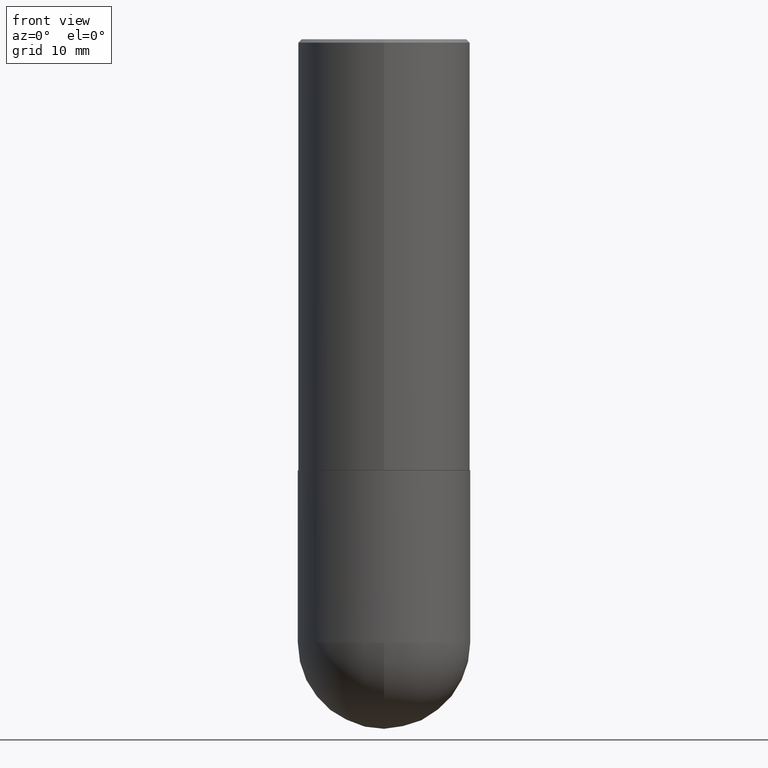
[diagram: clean part render]
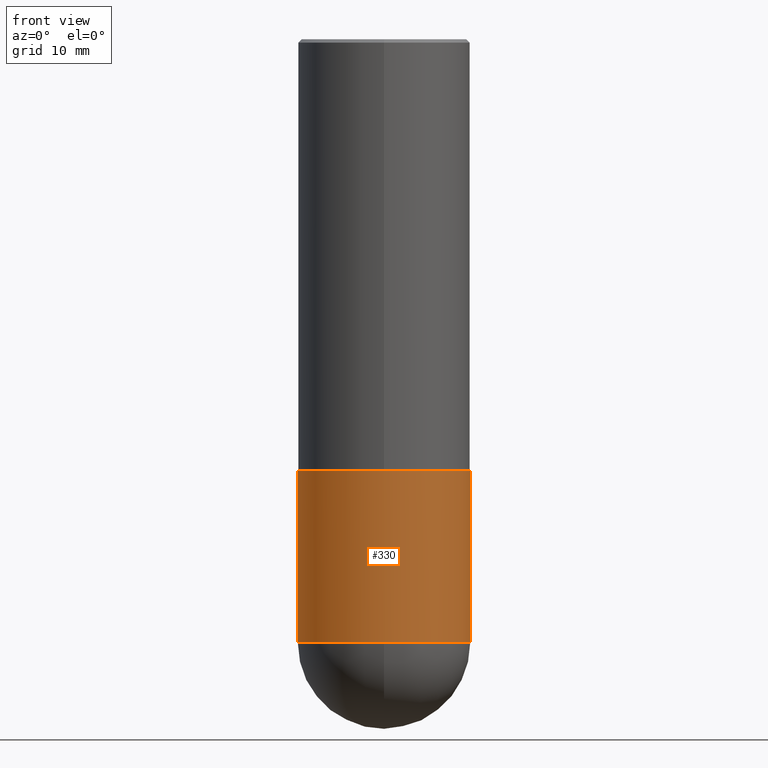
[diagram: same view with one face highlighted and labeled with its STEP entity id]
A machine part, front view. The second image highlights one B-rep face of the part: STEP entity #330.
In plain terms, the highlighted cylindrical surface (partial cylindrical patch) has radius 12.7 mm, axis along (-0, 0, 1).
Its self-contained STEP definition (entity closure, byte-faithful):
#5 = DIRECTION ( 'NONE',  ( 1.000000000000000000, -6.982962677686266711E-15, 0.000000000000000000 ) ) ;
#7 = VERTEX_POINT ( 'NONE', #109 ) ;
#11 = EDGE_LOOP ( 'NONE', ( #173, #112, #302, #232, #179 ) ) ;
#52 = AXIS2_PLACEMENT_3D ( 'NONE', #164, #64, #101 ) ;
#63 = VERTEX_POINT ( 'NONE', #140 ) ;
#64 = DIRECTION ( 'NONE',  ( -2.445468806185136597E-29, 3.491481338843145583E-15, 1.000000000000000000 ) ) ;
#69 = DIRECTION ( 'NONE',  ( 1.000000000000000000, -6.982962677686266711E-15, 0.000000000000000000 ) ) ;
#88 = DIRECTION ( 'NONE',  ( -2.445468806185136877E-29, 3.491481338843145188E-15, 1.000000000000000000 ) ) ;
#101 = DIRECTION ( 'NONE',  ( 1.000000000000000000, -6.982962677686269077E-15, 0.000000000000000000 ) ) ;
#109 = CARTESIAN_POINT ( 'NONE',  ( -0.5000000000000000000, -6.921730337728935424E-15, -2.500000000000000000 ) ) ;
#112 = ORIENTED_EDGE ( 'NONE', *, *, #381, .T. ) ;
#122 = CARTESIAN_POINT ( 'NONE',  ( 0.5000000000000000000, -3.491481338843133355E-15, 2.438088387897967896E-29 ) ) ;
#123 = VERTEX_POINT ( 'NONE', #248 ) ;
#140 = CARTESIAN_POINT ( 'NONE',  ( 0.5000000000000000000, -1.396592535537257286E-14, -3.499999999999999112 ) ) ;
#153 = LINE ( 'NONE', #122, #221 ) ;
#154 = EDGE_CURVE ( 'NONE', #377, #63, #409, .T. ) ;
#157 = LINE ( 'NONE', #160, #313 ) ;
#160 = CARTESIAN_POINT ( 'NONE',  ( -0.5000000000000000000, 3.552713678800500929E-15, -2.459467545127452891E-29 ) ) ;
#164 = CARTESIAN_POINT ( 'NONE',  ( 6.113672015462842613E-29, -8.728703347107864943E-15, -2.500000000000000000 ) ) ;
#173 = ORIENTED_EDGE ( 'NONE', *, *, #271, .F. ) ;
#179 = ORIENTED_EDGE ( 'NONE', *, *, #391, .F. ) ;
#189 = CARTESIAN_POINT ( 'NONE',  ( -0.5000000000000000000, -6.921730337728939368E-15, -3.499999999999999112 ) ) ;
#202 = DIRECTION ( 'NONE',  ( -2.445468806185136597E-29, 3.491481338843145583E-15, 1.000000000000000000 ) ) ;
#221 = VECTOR ( 'NONE', #251, 39.37007874015748143 ) ;
#224 = EDGE_CURVE ( 'NONE', #63, #123, #153, .T. ) ;
#229 = DIRECTION ( 'NONE',  ( -2.445468806185136597E-29, 3.491481338843145583E-15, 1.000000000000000000 ) ) ;
#232 = ORIENTED_EDGE ( 'NONE', *, *, #224, .T. ) ;
#235 = CIRCLE ( 'NONE', #52, 0.5000000000000000000 ) ;
#247 = CARTESIAN_POINT ( 'NONE',  ( 0.000000000000000000, 0.000000000000000000, 0.000000000000000000 ) ) ;
#248 = CARTESIAN_POINT ( 'NONE',  ( 0.5000000000000000000, -1.222018468595099830E-14, -2.500000000000000000 ) ) ;
#251 = DIRECTION ( 'NONE',  ( -2.445468806185136877E-29, 3.491481338843145188E-15, 1.000000000000000000 ) ) ;
#261 = CARTESIAN_POINT ( 'NONE',  ( 8.559140821647976968E-29, -1.222018468595100619E-14, -3.499999999999999112 ) ) ;
#271 = EDGE_CURVE ( 'NONE', #345, #7, #157, .T. ) ;
#286 = CYLINDRICAL_SURFACE ( 'NONE', #402, 0.5000000000000000000 ) ;
#302 = ORIENTED_EDGE ( 'NONE', *, *, #154, .T. ) ;
#313 = VECTOR ( 'NONE', #88, 39.37007874015748143 ) ;
#321 = CIRCLE ( 'NONE', #366, 0.5000000000000000000 ) ;
#323 = FACE_OUTER_BOUND ( 'NONE', #11, .T. ) ;
#324 = DIRECTION ( 'NONE',  ( -2.445468806185136597E-29, 3.491481338843145583E-15, 1.000000000000000000 ) ) ;
#326 = AXIS2_PLACEMENT_3D ( 'NONE', #261, #229, #69 ) ;
#330 = ADVANCED_FACE ( 'NONE', ( #323 ), #286, .T. ) ;
#335 = CARTESIAN_POINT ( 'NONE',  ( -3.552713678800417310E-15, -0.5000000000000125455, -3.499999999999997780 ) ) ;
#337 = CARTESIAN_POINT ( 'NONE',  ( 8.559140821647976968E-29, -1.222018468595100619E-14, -3.499999999999999112 ) ) ;
#345 = VERTEX_POINT ( 'NONE', #189 ) ;
#366 = AXIS2_PLACEMENT_3D ( 'NONE', #337, #202, #5 ) ;
#377 = VERTEX_POINT ( 'NONE', #335 ) ;
#381 = EDGE_CURVE ( 'NONE', #345, #377, #321, .T. ) ;
#382 = DIRECTION ( 'NONE',  ( 1.000000000000000000, -6.982962677686266711E-15, 4.876176775795935793E-29 ) ) ;
#391 = EDGE_CURVE ( 'NONE', #7, #123, #235, .T. ) ;
#402 = AXIS2_PLACEMENT_3D ( 'NONE', #247, #324, #382 ) ;
#409 = CIRCLE ( 'NONE', #326, 0.5000000000000000000 ) ;